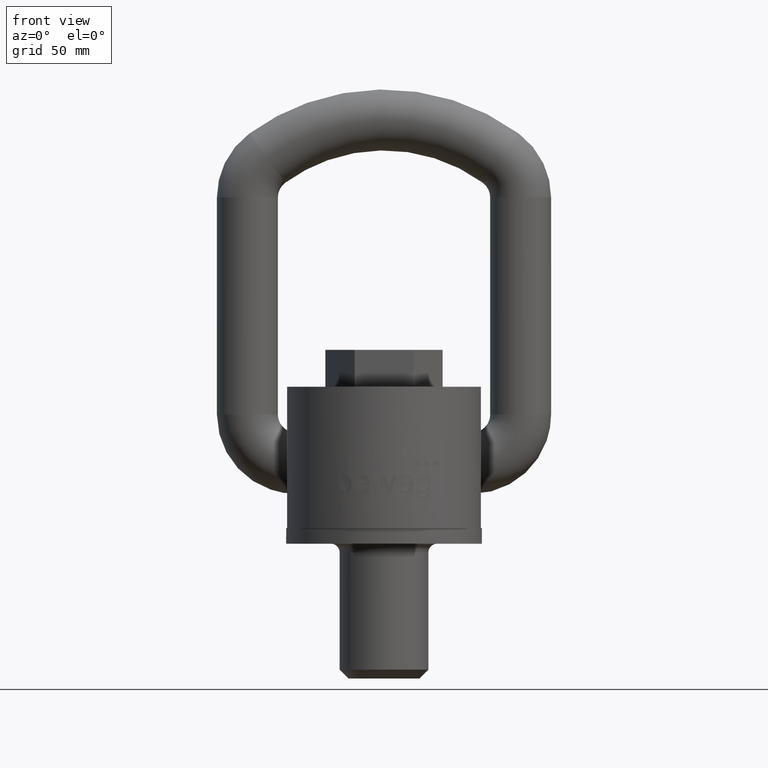
[diagram: clean part render]
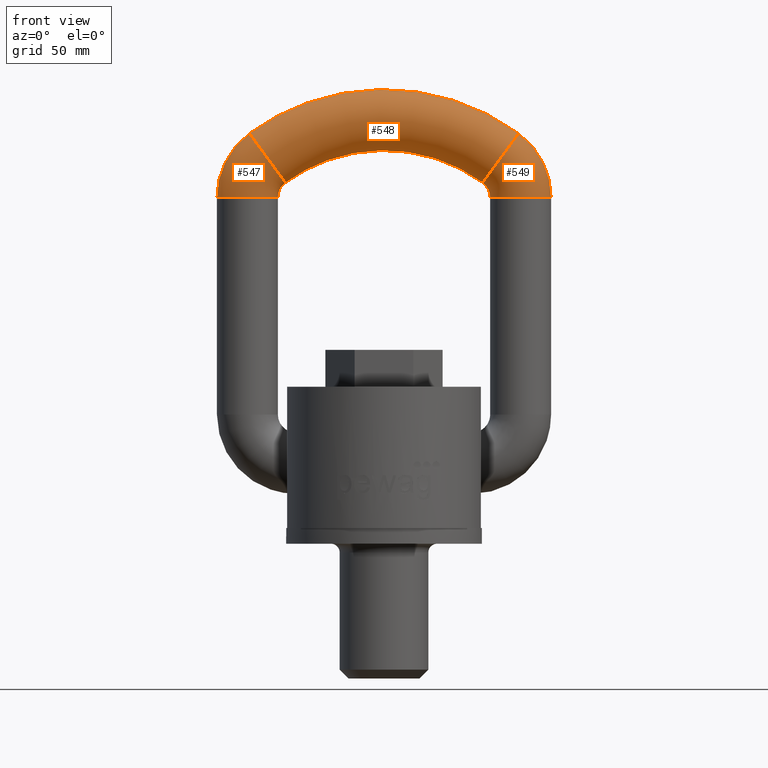
[diagram: same view with one multi-face feature highlighted, each face labeled with its STEP entity id]
A machine part, front view. The highlighted faces form ONE feature: a constant-radius fillet chain: 3 tangent blend faces with common blend radius 16.5 mm. The faces share edges in the B-rep.
Their STEP definitions:
[1] entity #548 (Torus):
#242=TOROIDAL_SURFACE('',#2629,107.,16.5);
#548=ADVANCED_FACE('',(#633,#634),#242,.T.);
#633=FACE_BOUND('',#799,.T.);
#634=FACE_BOUND('',#800,.T.);
#799=EDGE_LOOP('',(#1779));
#800=EDGE_LOOP('',(#1780));
#1152=CIRCLE('',#2626,16.5);
#1153=CIRCLE('',#2628,16.5);
#1779=ORIENTED_EDGE('',*,*,#2313,.T.);
#1780=ORIENTED_EDGE('',*,*,#2312,.F.);
#1997=VERTEX_POINT('',#5120);
#1998=VERTEX_POINT('',#5123);
#2312=EDGE_CURVE('',#1997,#1997,#1152,.T.);
#2313=EDGE_CURVE('',#1998,#1998,#1153,.T.);
#2626=AXIS2_PLACEMENT_3D('',#5119,#3084,#3085);
#2628=AXIS2_PLACEMENT_3D('',#5122,#3088,#3089);
#2629=AXIS2_PLACEMENT_3D('',#5124,#3090,#3091);
#3084=DIRECTION('',(-0.807357853876866,0.,-0.590062111801242));
#3085=DIRECTION('',(-0.590062111801242,0.,0.807357853876867));
#3088=DIRECTION('',(-0.807357853876866,0.,0.590062111801242));
#3089=DIRECTION('',(0.590062111801242,0.,0.807357853876865));
#3090=DIRECTION('',(0.,-1.,0.));
#3091=DIRECTION('',(0.,0.,-1.));
#5119=CARTESIAN_POINT('',(-63.1366459627329,51.,200.387290364825));
#5120=CARTESIAN_POINT('',(-72.8726708074534,51.,213.708694953793));
#5122=CARTESIAN_POINT('',(63.1366459627329,51.,200.387290364825));
#5123=CARTESIAN_POINT('',(72.8726708074534,51.,213.708694953793));
#5124=CARTESIAN_POINT('',(0.,51.,114.));
[2] entity #549 (Torus):
#243=TOROIDAL_SURFACE('',#2631,26.5,16.5);
#549=ADVANCED_FACE('',(#635,#636),#243,.T.);
#635=FACE_BOUND('',#801,.T.);
#636=FACE_BOUND('',#802,.T.);
#801=EDGE_LOOP('',(#1781));
#802=EDGE_LOOP('',(#1782));
#1153=CIRCLE('',#2628,16.5);
#1154=CIRCLE('',#2630,16.5);
#1781=ORIENTED_EDGE('',*,*,#2313,.F.);
#1782=ORIENTED_EDGE('',*,*,#2314,.T.);
#1998=VERTEX_POINT('',#5123);
#1999=VERTEX_POINT('',#5126);
#2313=EDGE_CURVE('',#1998,#1998,#1153,.T.);
#2314=EDGE_CURVE('',#1999,#1999,#1154,.T.);
#2628=AXIS2_PLACEMENT_3D('',#5122,#3088,#3089);
#2630=AXIS2_PLACEMENT_3D('',#5125,#3092,#3093);
#2631=AXIS2_PLACEMENT_3D('',#5127,#3094,#3095);
#3088=DIRECTION('',(-0.807357853876866,0.,0.590062111801242));
#3089=DIRECTION('',(0.590062111801242,0.,0.807357853876865));
#3092=DIRECTION('',(1.17717655330863E-15,0.,1.));
#3093=DIRECTION('',(1.,0.,-1.6821560979169E-15));
#3094=DIRECTION('',(0.,1.,0.));
#3095=DIRECTION('',(0.,0.,1.));
#5122=CARTESIAN_POINT('',(63.1366459627329,51.,200.387290364825));
#5123=CARTESIAN_POINT('',(72.8726708074534,51.,213.708694953793));
#5125=CARTESIAN_POINT('',(74.,51.,178.992307237088));
#5126=CARTESIAN_POINT('',(90.5,51.,178.992307237088));
#5127=CARTESIAN_POINT('',(47.5,51.,178.992307237088));
[3] entity #547 (Torus):
#241=TOROIDAL_SURFACE('',#2627,26.5,16.5);
#547=ADVANCED_FACE('',(#631,#632),#241,.T.);
#631=FACE_BOUND('',#797,.T.);
#632=FACE_BOUND('',#798,.T.);
#797=EDGE_LOOP('',(#1777));
#798=EDGE_LOOP('',(#1778));
#1151=CIRCLE('',#2624,16.5);
#1152=CIRCLE('',#2626,16.5);
#1777=ORIENTED_EDGE('',*,*,#2312,.T.);
#1778=ORIENTED_EDGE('',*,*,#2311,.F.);
#1996=VERTEX_POINT('',#5117);
#1997=VERTEX_POINT('',#5120);
#2311=EDGE_CURVE('',#1996,#1996,#1151,.T.);
#2312=EDGE_CURVE('',#1997,#1997,#1152,.T.);
#2624=AXIS2_PLACEMENT_3D('',#5116,#3080,#3081);
#2626=AXIS2_PLACEMENT_3D('',#5119,#3084,#3085);
#2627=AXIS2_PLACEMENT_3D('',#5121,#3086,#3087);
#3080=DIRECTION('',(-1.66533453693773E-16,0.,-1.));
#3081=DIRECTION('',(-1.,0.,0.));
#3084=DIRECTION('',(-0.807357853876866,0.,-0.590062111801242));
#3085=DIRECTION('',(-0.590062111801242,0.,0.807357853876867));
#3086=DIRECTION('',(0.,-1.,0.));
#3087=DIRECTION('',(0.,0.,-1.));
#5116=CARTESIAN_POINT('',(-74.,51.,178.992307237088));
#5117=CARTESIAN_POINT('',(-90.5,51.,178.992307237088));
#5119=CARTESIAN_POINT('',(-63.1366459627329,51.,200.387290364825));
#5120=CARTESIAN_POINT('',(-72.8726708074534,51.,213.708694953793));
#5121=CARTESIAN_POINT('',(-47.5,51.,178.992307237088));